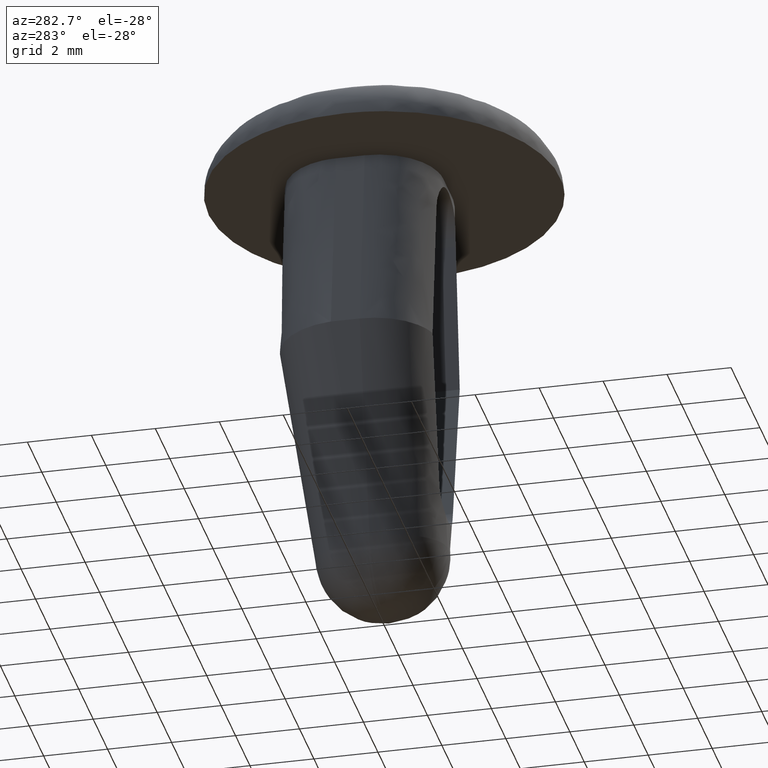
[diagram: clean part render]
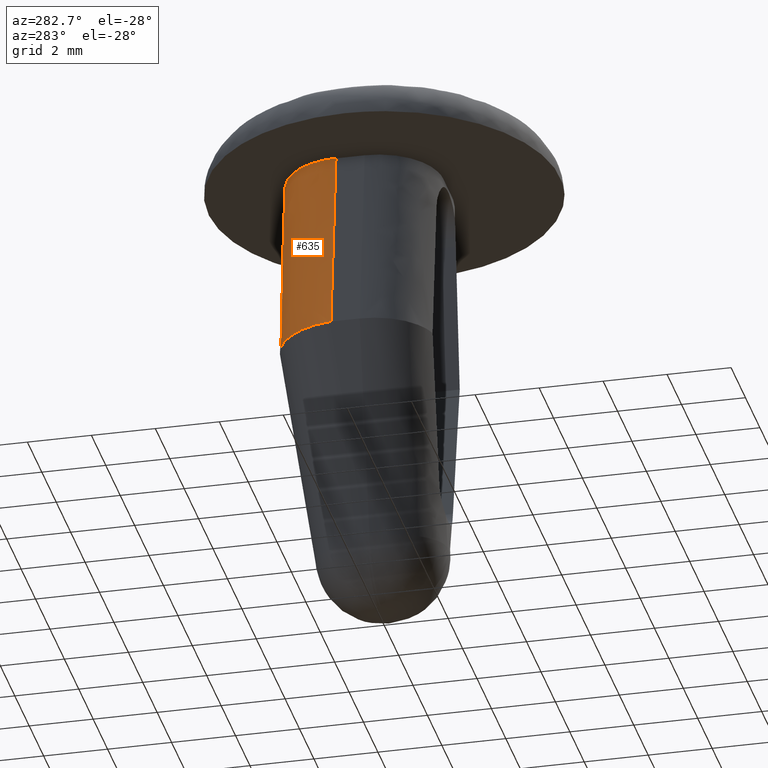
[diagram: same view with one face highlighted and labeled with its STEP entity id]
A machine part, auxiliary view. The second image highlights one B-rep face of the part: STEP entity #635.
In plain terms, the highlighted face is a freeform B-spline surface patch.
Its self-contained STEP definition (entity closure, byte-faithful):
#529=CARTESIAN_POINT('',(-3.419499280661696,0.847648103384317,-6.173042623197014));
#530=CARTESIAN_POINT('',(-2.653602021136877,0.847648103384317,0.391799782984317));
#531=CARTESIAN_POINT('',(-3.475263736808355,2.991650575485843,-6.166536778654362));
#532=CARTESIAN_POINT('',(-2.709366477283536,2.991650575485843,0.398305627526967));
#533=CARTESIAN_POINT('',(-1.347002639082159,2.898098443163741,-6.414833575660025));
#534=CARTESIAN_POINT('',(-0.581105379557340,2.898098443163741,0.150008830521304));
#542=(BOUNDED_SURFACE()B_SPLINE_SURFACE(1,2,((#529,#531,#533),(#530,#532,#534)),.UNSPECIFIED.,.F.,.F.,.U.)B_SPLINE_SURFACE_WITH_KNOTS((2,2),(3,3),(0.0,6.609368686201754),(0.0,3.478498999687467),.UNSPECIFIED.)GEOMETRIC_REPRESENTATION_ITEM()RATIONAL_B_SPLINE_SURFACE(((1.0,0.681998360062498,1.0),(1.0,0.681998360062498,1.0)))REPRESENTATION_ITEM('')SURFACE());
#543=CARTESIAN_POINT('',(-3.400001000000000,0.900002000000066,-5.999999999999901));
#544=VERTEX_POINT('',#543);
#545=CARTESIAN_POINT('',(-3.399836353955015,0.932279107442337,-6.000836490931850));
#546=VERTEX_POINT('',#545);
#547=CARTESIAN_POINT('',(-3.400001000000000,0.900002000000066,-5.999999999999901));
#548=CARTESIAN_POINT('',(-3.400000999660080,0.916141638009233,-6.000000001726934));
#549=CARTESIAN_POINT('',(-3.399836353955015,0.932279107442337,-6.000836490931850));
#557=(BOUNDED_CURVE()B_SPLINE_CURVE(2,(#547,#548,#549),.UNSPECIFIED.,.F.,.U.)CURVE()GEOMETRIC_REPRESENTATION_ITEM()QUASI_UNIFORM_CURVE()RATIONAL_B_SPLINE_CURVE((1.0,0.999967440869908,1.0))REPRESENTATION_ITEM(''));
#558=EDGE_CURVE('',#544,#546,#557,.T.);
#559=ORIENTED_EDGE('',*,*,#558,.F.);
#560=CARTESIAN_POINT('',(-2.700001000000000,0.900002000000066,0.000008000000108));
#561=VERTEX_POINT('',#560);
#562=CARTESIAN_POINT('',(-2.700001000000000,0.900002000000066,0.000008000000108));
#563=CARTESIAN_POINT('',(-3.400001000000000,0.900002000000066,-5.999999999999901));
#564=QUASI_UNIFORM_CURVE('',1,(#562,#563),.UNSPECIFIED.,.F.,.U.);
#565=EDGE_CURVE('',#561,#544,#564,.T.);
#566=ORIENTED_EDGE('',*,*,#565,.F.);
#567=CARTESIAN_POINT('',(-0.686436861311942,2.900002000000000,0.0));
#568=VERTEX_POINT('',#567);
#569=CARTESIAN_POINT('',(-0.686436861311942,2.900002000000000,0.0));
#570=CARTESIAN_POINT('',(-2.700001463511605,2.900002000000014,0.000004027038195));
#571=CARTESIAN_POINT('',(-2.700001000000000,0.900002000000066,0.000008000000108));
#579=(BOUNDED_CURVE()B_SPLINE_CURVE(2,(#569,#570,#571),.UNSPECIFIED.,.F.,.U.)CURVE()GEOMETRIC_REPRESENTATION_ITEM()QUASI_UNIFORM_CURVE()RATIONAL_B_SPLINE_CURVE((1.0,0.707106781186532,1.0))REPRESENTATION_ITEM(''));
#580=EDGE_CURVE('',#568,#561,#579,.T.);
#581=ORIENTED_EDGE('',*,*,#580,.F.);
#582=CARTESIAN_POINT('',(-1.386443544145188,2.900002000000000,-6.000065281503731));
#583=VERTEX_POINT('',#582);
#584=CARTESIAN_POINT('',(-1.386443544145188,2.900002000000000,-6.000065281503731));
#585=CARTESIAN_POINT('',(-0.686436861311942,2.900002000000000,0.0));
#586=QUASI_UNIFORM_CURVE('',1,(#584,#585),.UNSPECIFIED.,.F.,.U.);
#587=EDGE_CURVE('',#583,#568,#586,.T.);
#588=ORIENTED_EDGE('',*,*,#587,.F.);
#589=CARTESIAN_POINT('',(-1.409293005312132,2.899874587765810,-6.001104989286520));
#590=VERTEX_POINT('',#589);
#591=CARTESIAN_POINT('',(-1.409293005312132,2.899874587765810,-6.001104989286520));
#592=CARTESIAN_POINT('',(-1.397807987181043,2.900002000000032,-6.000065281503718));
#593=CARTESIAN_POINT('',(-1.386443544145188,2.900002000000000,-6.000065281503731));
#601=(BOUNDED_CURVE()B_SPLINE_CURVE(2,(#591,#592,#593),.UNSPECIFIED.,.F.,.U.)CURVE()GEOMETRIC_REPRESENTATION_ITEM()QUASI_UNIFORM_CURVE()RATIONAL_B_SPLINE_CURVE((1.0,0.999984073324098,1.0))REPRESENTATION_ITEM(''));
#602=EDGE_CURVE('',#590,#583,#601,.T.);
#603=ORIENTED_EDGE('',*,*,#602,.F.);
#604=CARTESIAN_POINT('',(-3.399836353955015,0.932279107442339,-6.000836490931840));
#605=CARTESIAN_POINT('',(-3.398507409406901,1.062533352516714,-6.007588247790633));
#606=CARTESIAN_POINT('',(-3.384459540409346,1.190514531095827,-6.013806359058886));
#607=CARTESIAN_POINT('',(-3.345017214185175,1.379207672349171,-6.022265164200314));
#608=CARTESIAN_POINT('',(-3.328786021991359,1.441555000059453,-6.024939491628837));
#609=CARTESIAN_POINT('',(-3.290010283558141,1.565123498658348,-6.029976587763877));
#610=CARTESIAN_POINT('',(-3.267357231646990,1.626514025703086,-6.032344026579373));
#611=CARTESIAN_POINT('',(-3.191305823604701,1.805007807665865,-6.038801003019119));
#612=CARTESIAN_POINT('',(-3.129570836575675,1.917769063998777,-6.042307629247222));
#613=CARTESIAN_POINT('',(-3.020604454913038,2.077667336969593,-6.046299740275392));
#614=CARTESIAN_POINT('',(-2.981394500311114,2.129582838565185,-6.047420569635188));
#615=CARTESIAN_POINT('',(-2.897907796960050,2.229450886785865,-6.049190679570009));
#616=CARTESIAN_POINT('',(-2.854035540301357,2.276955483991797,-6.049833412622725));
#617=CARTESIAN_POINT('',(-2.716248025340248,2.412427516602062,-6.051029435503204));
#618=CARTESIAN_POINT('',(-2.616217707758192,2.493416727859224,-6.050862211795551));
#619=CARTESIAN_POINT('',(-2.453723529476162,2.600695048400949,-6.048965767824861));
#620=CARTESIAN_POINT('',(-2.397481281257957,2.634009801714073,-6.048053024234773));
#621=CARTESIAN_POINT('',(-2.283246312707176,2.694450951979177,-6.045666927523516));
#622=CARTESIAN_POINT('',(-2.224960361438579,2.721782120368426,-6.044191408998151));
#623=CARTESIAN_POINT('',(-2.106099474292765,2.770778933563284,-6.040618148182436));
#624=CARTESIAN_POINT('',(-2.045524422417937,2.792444372482177,-6.038521433817515));
#625=CARTESIAN_POINT('',(-1.922071555055879,2.830067312067691,-6.033593641368405));
#626=CARTESIAN_POINT('',(-1.858940834165071,2.846072411675917,-6.030751531448400));
#627=CARTESIAN_POINT('',(-1.667880364602280,2.884865698955824,-6.020899400622239));
#628=CARTESIAN_POINT('',(-1.539170296906106,2.898433758007565,-6.012862430967744));
#629=CARTESIAN_POINT('',(-1.409293005312132,2.899874587765810,-6.001104989286520));
#630=B_SPLINE_CURVE_WITH_KNOTS('',3,(#604,#605,#606,#607,#608,#609,#610,#611,#612,#613,#614,#615,#616,#617,#618,#619,#620,#621,#622,#623,#624,#625,#626,#627,#628,#629),.UNSPECIFIED.,.F.,.U.,(4,2,2,2,2,2,2,2,2,2,2,2,4),(0.0,0.125000000000000,0.187500000000000,0.250000000000000,0.375000000000000,0.437500000000000,0.500000000000000,0.625000000000000,0.687500000000000,0.749999999999999,0.812499999999999,0.875000000000000,1.0),.UNSPECIFIED.);
#631=EDGE_CURVE('',#546,#590,#630,.T.);
#632=ORIENTED_EDGE('',*,*,#631,.F.);
#633=EDGE_LOOP('',(#559,#566,#581,#588,#603,#632));
#634=FACE_OUTER_BOUND('',#633,.T.);
#635=ADVANCED_FACE('',(#634),#542,.T.);